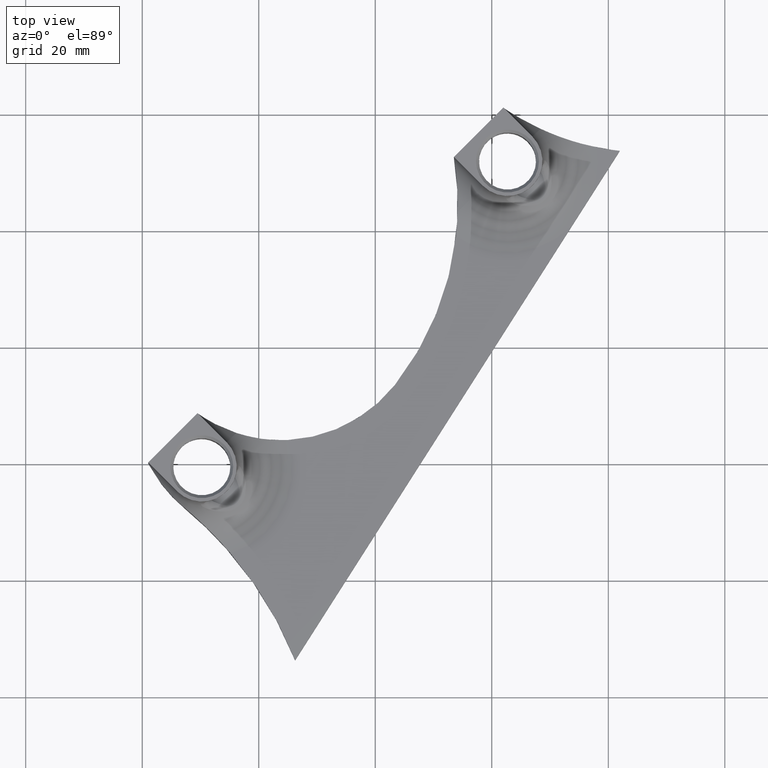
[diagram: clean part render]
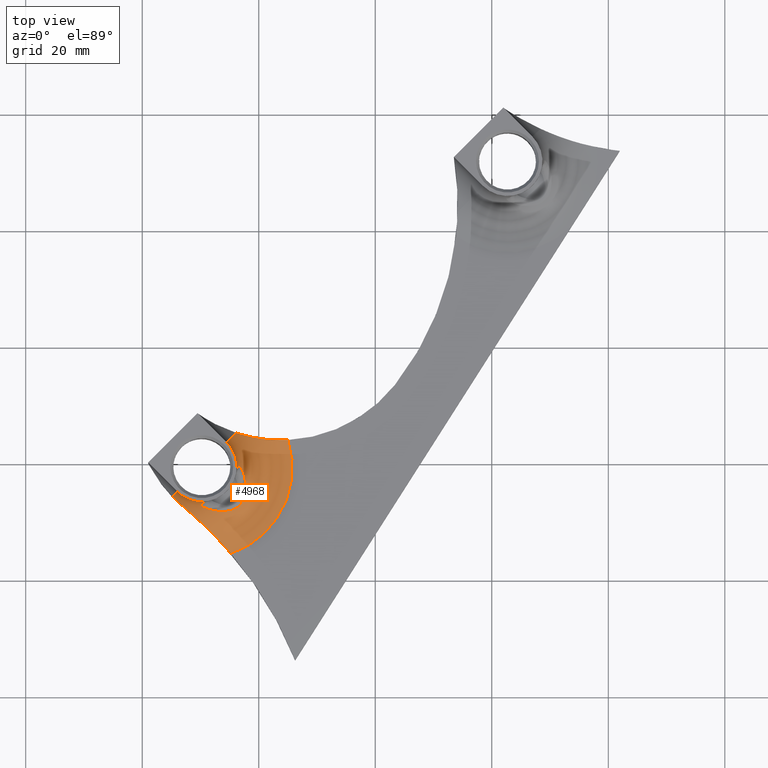
[diagram: same view with one face highlighted and labeled with its STEP entity id]
A machine part, top view. The second image highlights one B-rep face of the part: STEP entity #4968.
In plain terms, the highlighted toroidal blend (fillet) surface has major radius 15.525 mm and minor (blend) radius 9.525 mm.
Its self-contained STEP definition (entity closure, byte-faithful):
#1328 = B_SPLINE_CURVE_WITH_KNOTS ( 'NONE', 3,
 ( #4248, #4249, #4328, #4327, #4326, #4325, #4324, #4322, #4299, #4321, #4320, #4319, #4318, #4317 ),
 .UNSPECIFIED., .F., .F.,
 ( 4, 2, 2, 2, 2, 2, 4 ),
 ( 0.0007457499509097069700, 0.003149236284090509900, 0.004350979450680910600, 0.005552722617271311700, 0.007956208950452113900, 0.009157952117042518500, 0.01035969528363292300 ),
 .UNSPECIFIED. ) ;
#1354 = B_SPLINE_CURVE_WITH_KNOTS ( 'NONE', 3,
 ( #3044, #3045, #2300, #2299, #2298, #2294 ),
 .UNSPECIFIED., .F., .F.,
 ( 4, 2, 4 ),
 ( 0.007670879791883291800, 0.009102222353141386000, 0.01053356491439948000 ),
 .UNSPECIFIED. ) ;
#1357 = B_SPLINE_CURVE_WITH_KNOTS ( 'NONE', 3,
 ( #3061, #3060, #3059, #3058, #3057, #3056, #3055, #3075, #3074, #3073, #3072, #3071, #3070, #3069 ),
 .UNSPECIFIED., .F., .F.,
 ( 4, 2, 2, 2, 2, 2, 4 ),
 ( 2.813823409642952500E-007, 0.001504849655791668300, 0.003009417929242372200, 0.006018554476143777800, 0.009027691023045183000, 0.01053225929649588000, 0.01203682756994657600 ),
 .UNSPECIFIED. ) ;
#1362 = B_SPLINE_CURVE_WITH_KNOTS ( 'NONE', 3,
 ( #3761, #3762, #3756, #3755, #3754, #3753, #3752, #3751, #3750, #3749, #3748, #3745, #3747, #3743, #3746, #3744, #3742, #3741, #3740, #3739, #3205, #3206, #3207, #3208, #3209, #3210, #3211, #3212, #3213, #3214, #3215, #3216, #3217, #3218, #3219, #3220, #3221, #3223, #3222, #3299, #3298, #3297, #3296, #3295, #3294, #3293, #3292, #3291, #3290, #3289, #3288, #3287, #3688, #3689, #3687, #3690, #3691, #3692, #3693, #3694, #3695, #3681, #3682, #3683, #3684, #3685 ),
 .UNSPECIFIED., .F., .F.,
 ( 4, 2, 2, 2, 2, 2, 2, 2, 2, 2, 2, 2, 2, 2, 2, 2, 2, 2, 2, 2, 2, 2, 2, 2, 2, 2, 2, 2, 2, 2, 2, 2, 4 ),
 ( 0.008221871331113144200, 0.009907724641680458500, 0.01075065129696410600, 0.01117211462460592800, 0.01159357795224775000, 0.01201504127988957200, 0.01243650460753139300, 0.01285796793517321500, 0.01327943126281503500, 0.01370089459045685500, 0.01412235791809867600, 0.01496528457338232000, 0.01665113788394959400, 0.01833699119451687200, 0.02002284450508414600, 0.02086577116036777300, 0.02170869781565140000, 0.02255162447093502600, 0.02339455112621865300, 0.02423747778150228000, 0.02508040443678590700, 0.02592333109206953300, 0.02676625774735316000, 0.02760918440263679400, 0.02845211105792041400, 0.02929503771320404000, 0.03013796436848767400, 0.03055942769612948800, 0.03098089102377130100, 0.03182381767905493500, 0.03266674433433856800, 0.03350967098962220200, 0.03519552430018946200 ),
 .UNSPECIFIED. ) ;
#1772 = DIRECTION ( 'NONE',  ( -0.0000000000000000000, -0.0000000000000000000, -1.000000000000000000 ) ) ;
#1773 = CARTESIAN_POINT ( 'NONE',  ( -29.77331683725253000, 39.37998189283575800, 9.525000000000003900 ) ) ;
#1775 = DIRECTION ( 'NONE',  ( -1.000000000000000000, 0.0000000000000000000, 0.0000000000000000000 ) ) ;
#2097 = ORIENTED_EDGE ( 'NONE', *, *, #4416, .T. ) ;
#2099 = ORIENTED_EDGE ( 'NONE', *, *, #4419, .T. ) ;
#2162 = CARTESIAN_POINT ( 'NONE',  ( -23.84828616509041800, 45.30501256499788800, 3.227063293421044100 ) ) ;
#2168 = CARTESIAN_POINT ( 'NONE',  ( -26.81327856030426600, 34.16096154424534600, 9.525000000000005700 ) ) ;
#2171 = CARTESIAN_POINT ( 'NONE',  ( -14.99895754273689600, 44.14904180402984200, 2.358641852202397600E-015 ) ) ;
#2223 = CARTESIAN_POINT ( 'NONE',  ( -24.81357973590973700, 24.66853625056242900, 3.058294542859309800E-015 ) ) ;
#2224 = CARTESIAN_POINT ( 'NONE',  ( -32.77432536343481200, 32.48149548240635900, 4.358450293054441500 ) ) ;
#2229 = CARTESIAN_POINT ( 'NONE',  ( -24.55429648866207900, 36.41994361588756100, 9.525000000000005700 ) ) ;
#2246 = CARTESIAN_POINT ( 'NONE',  ( -25.53067615013327100, 43.62262257995502800, 9.525000000000005700 ) ) ;
#2248 = CARTESIAN_POINT ( 'NONE',  ( -34.80122124744543300, 34.35207748264275600, 5.061556280425719500 ) ) ;
#2250 = CARTESIAN_POINT ( 'NONE',  ( -34.01595752437175700, 35.13734120571646000, 9.525000000000005700 ) ) ;
#2281 = DIRECTION ( 'NONE',  ( 0.7071067811865406900, 0.7071067811865544600, 0.0000000000000000000 ) ) ;
#2294 = CARTESIAN_POINT ( 'NONE',  ( -32.77432536343481200, 32.48149548240635900, 4.358450293054441500 ) ) ;
#2298 = CARTESIAN_POINT ( 'NONE',  ( -33.11405913549414500, 32.76195985515804000, 4.546877030595137400 ) ) ;
#2299 = CARTESIAN_POINT ( 'NONE',  ( -33.45098942908828800, 33.05502989129631400, 4.715218961454381100 ) ) ;
#2300 = CARTESIAN_POINT ( 'NONE',  ( -34.12777203868789400, 33.67797077269539600, 4.966952515880626300 ) ) ;
#2360 = EDGE_LOOP ( 'NONE', ( #2953, #2097, #2958, #2954, #2949, #2946, #2947, #2944, #2099 ) ) ;
#2447 = FACE_OUTER_BOUND ( 'NONE', #2360, .T. ) ;
#2451 = TOROIDAL_SURFACE ( 'NONE', #4451, 15.52499999999997000, 9.524999999999998600 ) ;
#2485 = CIRCLE ( 'NONE', #4467, 5.999999999999967100 ) ;
#2554 = CIRCLE ( 'NONE', #4483, 9.524999999999996800 ) ;
#2555 = CIRCLE ( 'NONE', #4485, 9.525000000000000400 ) ;
#2557 = CIRCLE ( 'NONE', #4486, 5.999999999999967100 ) ;
#2562 = CIRCLE ( 'NONE', #4481, 15.52499999999996700 ) ;
#2944 = ORIENTED_EDGE ( 'NONE', *, *, #4548, .T. ) ;
#2946 = ORIENTED_EDGE ( 'NONE', *, *, #4430, .T. ) ;
#2947 = ORIENTED_EDGE ( 'NONE', *, *, #4412, .F. ) ;
#2949 = ORIENTED_EDGE ( 'NONE', *, *, #4455, .T. ) ;
#2953 = ORIENTED_EDGE ( 'NONE', *, *, #4418, .T. ) ;
#2954 = ORIENTED_EDGE ( 'NONE', *, *, #4420, .F. ) ;
#2958 = ORIENTED_EDGE ( 'NONE', *, *, #4549, .T. ) ;
#2967 = VERTEX_POINT ( 'NONE', #2229 ) ;
#2974 = VERTEX_POINT ( 'NONE', #2246 ) ;
#2975 = VERTEX_POINT ( 'NONE', #2223 ) ;
#2977 = VERTEX_POINT ( 'NONE', #2248 ) ;
#2993 = VERTEX_POINT ( 'NONE', #2250 ) ;
#3000 = VERTEX_POINT ( 'NONE', #2224 ) ;
#3014 = VERTEX_POINT ( 'NONE', #2171 ) ;
#3016 = VERTEX_POINT ( 'NONE', #2162 ) ;
#3026 = VERTEX_POINT ( 'NONE', #2168 ) ;
#3044 = CARTESIAN_POINT ( 'NONE',  ( -34.80122124744543300, 34.35207748264275600, 5.061556280425719500 ) ) ;
#3045 = CARTESIAN_POINT ( 'NONE',  ( -34.47108142796891200, 34.01180968086284700, 5.048055321748798900 ) ) ;
#3055 = CARTESIAN_POINT ( 'NONE',  ( -29.48663693147901200, 29.58400045254897000, 1.882652520432931600 ) ) ;
#3056 = CARTESIAN_POINT ( 'NONE',  ( -30.12518575517183100, 30.17912376046809100, 2.384340444485273800 ) ) ;
#3057 = CARTESIAN_POINT ( 'NONE',  ( -31.09258193595462700, 31.04625799561125300, 3.159684776418133700 ) ) ;
#3058 = CARTESIAN_POINT ( 'NONE',  ( -31.41681280677200400, 31.33113765598665500, 3.421532040151635800 ) ) ;
#3059 = CARTESIAN_POINT ( 'NONE',  ( -32.07961714665082600, 31.90172536366105000, 3.921642146573694400 ) ) ;
#3060 = CARTESIAN_POINT ( 'NONE',  ( -32.41785825114860100, 32.18721704064882500, 4.160742733392779300 ) ) ;
#3061 = CARTESIAN_POINT ( 'NONE',  ( -32.77432536343481200, 32.48149548240635900, 4.358450293054441500 ) ) ;
#3069 = CARTESIAN_POINT ( 'NONE',  ( -24.81357973590973700, 24.66853625056242900, 3.058294542859309800E-015 ) ) ;
#3070 = CARTESIAN_POINT ( 'NONE',  ( -25.14736547338314700, 25.05776878048500900, 5.592111517772890800E-015 ) ) ;
#3071 = CARTESIAN_POINT ( 'NONE',  ( -25.48448954507307800, 25.44157699058096600, 0.03549347292057243600 ) ) ;
#3072 = CARTESIAN_POINT ( 'NONE',  ( -26.16541417085010900, 26.19873059186970800, 0.1720055300137645600 ) ) ;
#3073 = CARTESIAN_POINT ( 'NONE',  ( -26.51119731682061700, 26.57407747864089500, 0.2741872792926884900 ) ) ;
#3074 = CARTESIAN_POINT ( 'NONE',  ( -27.52801265757823800, 27.65309594369405500, 0.6595413120244488800 ) ) ;
#3075 = CARTESIAN_POINT ( 'NONE',  ( -28.18749362798156400, 28.32049921787865900, 1.021840724585849600 ) ) ;
#3205 = CARTESIAN_POINT ( 'NONE',  ( -23.00176904847873900, 39.21552746246492700, 5.764199797012632400 ) ) ;
#3206 = CARTESIAN_POINT ( 'NONE',  ( -22.86780429882699700, 38.97931101985184900, 5.443929660523268800 ) ) ;
#3207 = CARTESIAN_POINT ( 'NONE',  ( -22.78236826606616500, 38.79629341150474200, 5.245657623197487000 ) ) ;
#3208 = CARTESIAN_POINT ( 'NONE',  ( -22.54804406380749500, 38.20831584070580100, 4.685475610381900900 ) ) ;
#3209 = CARTESIAN_POINT ( 'NONE',  ( -22.42162991419900900, 37.77019123807266300, 4.359619341550105900 ) ) ;
#3210 = CARTESIAN_POINT ( 'NONE',  ( -22.24402803248578700, 36.83385538137218200, 3.756250241892407100 ) ) ;
#3211 = CARTESIAN_POINT ( 'NONE',  ( -22.19406486422115800, 36.34472360568145200, 3.487169189728279100 ) ) ;
#3212 = CARTESIAN_POINT ( 'NONE',  ( -22.20667402211736200, 35.32946759638829800, 3.009159992979793000 ) ) ;
#3213 = CARTESIAN_POINT ( 'NONE',  ( -22.26881939639452000, 34.80102987812448800, 2.800147892303895600 ) ) ;
#3214 = CARTESIAN_POINT ( 'NONE',  ( -22.51463210653036400, 34.02338531119384900, 2.568728147589612200 ) ) ;
#3215 = CARTESIAN_POINT ( 'NONE',  ( -22.62100737030696300, 33.77124600359862700, 2.506706990768051500 ) ) ;
#3216 = CARTESIAN_POINT ( 'NONE',  ( -22.90060269073934400, 33.28720718669357100, 2.420341369866480200 ) ) ;
#3217 = CARTESIAN_POINT ( 'NONE',  ( -23.07095729661125100, 33.06214814905459300, 2.397597671673671500 ) ) ;
#3218 = CARTESIAN_POINT ( 'NONE',  ( -23.47343224988907200, 32.66270720215402400, 2.398865359263732300 ) ) ;
#3219 = CARTESIAN_POINT ( 'NONE',  ( -23.69895238878820000, 32.49451768856053500, 2.422706701138931200 ) ) ;
#3220 = CARTESIAN_POINT ( 'NONE',  ( -24.18644886935569700, 32.21733948086292500, 2.511607829973746800 ) ) ;
#3221 = CARTESIAN_POINT ( 'NONE',  ( -24.43903120912225200, 32.11281006937738900, 2.574667141791086200 ) ) ;
#3222 = CARTESIAN_POINT ( 'NONE',  ( -25.21878476340952300, 31.89749266286107200, 2.822010191825028400 ) ) ;
#3223 = CARTESIAN_POINT ( 'NONE',  ( -24.95611325817066700, 31.95235573595828900, 2.730008265938705000 ) ) ;
#3287 = CARTESIAN_POINT ( 'NONE',  ( -29.69403627879935900, 32.65721778110080500, 5.881004059688570400 ) ) ;
#3288 = CARTESIAN_POINT ( 'NONE',  ( -29.37802489768222700, 32.47705817022589500, 5.449948295862361300 ) ) ;
#3289 = CARTESIAN_POINT ( 'NONE',  ( -29.19582382428582100, 32.39182999733641600, 5.252207097495730000 ) ) ;
#3290 = CARTESIAN_POINT ( 'NONE',  ( -28.80652796196311300, 32.23604276445375700, 4.880045248162906200 ) ) ;
#3291 = CARTESIAN_POINT ( 'NONE',  ( -28.59714840226808300, 32.16472955322190300, 4.704224417076608800 ) ) ;
#3292 = CARTESIAN_POINT ( 'NONE',  ( -28.16238020679833200, 32.03957958645564500, 4.371183477271793000 ) ) ;
#3293 = CARTESIAN_POINT ( 'NONE',  ( -27.93754785832614800, 31.98579011574590700, 4.214386716146261600 ) ) ;
#3294 = CARTESIAN_POINT ( 'NONE',  ( -27.47544909490729000, 31.89744090169496000, 3.915858428067140900 ) ) ;
#3295 = CARTESIAN_POINT ( 'NONE',  ( -27.23814977335203100, 31.86285281889206200, 3.774187041607084800 ) ) ;
#3296 = CARTESIAN_POINT ( 'NONE',  ( -26.75145377283271800, 31.81630922233221500, 3.504497728394180300 ) ) ;
#3297 = CARTESIAN_POINT ( 'NONE',  ( -26.50084995632538200, 31.80430672178027900, 3.375924877013686000 ) ) ;
#3298 = CARTESIAN_POINT ( 'NONE',  ( -25.99200832925757300, 31.80940335557439600, 3.135496230196593600 ) ) ;
#3299 = CARTESIAN_POINT ( 'NONE',  ( -25.73553493447652200, 31.82630235145400400, 3.024370849328904800 ) ) ;
#3681 = CARTESIAN_POINT ( 'NONE',  ( -28.72177301533503500, 33.42806555794661000, 8.637612100910468300 ) ) ;
#3682 = CARTESIAN_POINT ( 'NONE',  ( -28.49097342174290400, 33.48501077054304200, 8.785539550715947500 ) ) ;
#3683 = CARTESIAN_POINT ( 'NONE',  ( -27.78346150894843100, 33.69563597720333100, 9.182809206480085300 ) ) ;
#3684 = CARTESIAN_POINT ( 'NONE',  ( -27.28598860947428100, 33.89285761937382100, 9.387519563407011000 ) ) ;
#3685 = CARTESIAN_POINT ( 'NONE',  ( -26.81327856030426600, 34.16096154424534600, 9.525000000000005700 ) ) ;
#3687 = CARTESIAN_POINT ( 'NONE',  ( -29.97062143084595900, 32.93221902802135800, 6.626069684446873600 ) ) ;
#3688 = CARTESIAN_POINT ( 'NONE',  ( -29.82568793386727500, 32.75018745392962700, 6.109008665628841200 ) ) ;
#3689 = CARTESIAN_POINT ( 'NONE',  ( -29.94527373285393400, 32.88738481248131500, 6.492103879934008500 ) ) ;
#3690 = CARTESIAN_POINT ( 'NONE',  ( -29.98203890612584400, 33.01408263050769400, 6.894644166421051600 ) ) ;
#3691 = CARTESIAN_POINT ( 'NONE',  ( -29.96775825350759300, 33.05228068203858500, 7.033510876216511500 ) ) ;
#3692 = CARTESIAN_POINT ( 'NONE',  ( -29.86663951723654300, 33.15167763091565000, 7.432401997341477400 ) ) ;
#3693 = CARTESIAN_POINT ( 'NONE',  ( -29.72089509957789800, 33.20011130173142500, 7.681532450213953900 ) ) ;
#3694 = CARTESIAN_POINT ( 'NONE',  ( -29.36975511793177800, 33.28772102279084800, 8.110843226506615300 ) ) ;
#3695 = CARTESIAN_POINT ( 'NONE',  ( -29.16277378280354800, 33.32881375237951700, 8.298798211234862200 ) ) ;
#3696 = DIRECTION ( 'NONE',  ( 0.7071067811865542300, -0.7071067811865409100, 0.0000000000000000000 ) ) ;
#3697 = CARTESIAN_POINT ( 'NONE',  ( -40.75114961517355300, 28.40214911491452900, 9.525000000000003900 ) ) ;
#3700 = DIRECTION ( 'NONE',  ( -0.7071067811865465700, -0.7071067811865484600, 0.0000000000000000000 ) ) ;
#3701 = CARTESIAN_POINT ( 'NONE',  ( -18.79548405933141500, 50.35781467075690200, 9.525000000000003900 ) ) ;
#3702 = DIRECTION ( 'NONE',  ( -0.7071067811865484600, 0.7071067811865466800, 0.0000000000000000000 ) ) ;
#3704 = DIRECTION ( 'NONE',  ( -1.000000000000000000, 0.0000000000000000000, 0.0000000000000000000 ) ) ;
#3705 = DIRECTION ( 'NONE',  ( -0.0000000000000000000, -0.0000000000000000000, -1.000000000000000000 ) ) ;
#3706 = CARTESIAN_POINT ( 'NONE',  ( -29.77331683725253000, 39.37998189283575800, 9.525000000000005700 ) ) ;
#3735 = CARTESIAN_POINT ( 'NONE',  ( -29.77331683725253000, 39.37998189283575800, 3.469446951953614200E-015 ) ) ;
#3736 = DIRECTION ( 'NONE',  ( -0.0000000000000000000, -0.0000000000000000000, -1.000000000000000000 ) ) ;
#3737 = DIRECTION ( 'NONE',  ( -1.000000000000000000, 0.0000000000000000000, 0.0000000000000000000 ) ) ;
#3739 = CARTESIAN_POINT ( 'NONE',  ( -23.04749160925223700, 39.28806741715752800, 5.875097013990876200 ) ) ;
#3740 = CARTESIAN_POINT ( 'NONE',  ( -23.14044736816498100, 39.41567420168326000, 6.109182728297336800 ) ) ;
#3741 = CARTESIAN_POINT ( 'NONE',  ( -23.18780152876606200, 39.47062494079263200, 6.232851376031050900 ) ) ;
#3742 = CARTESIAN_POINT ( 'NONE',  ( -23.27889184469612300, 39.55065728959108600, 6.486804577218507900 ) ) ;
#3743 = CARTESIAN_POINT ( 'NONE',  ( -23.44486315683528200, 39.57486432042090700, 7.030677155778867900 ) ) ;
#3744 = CARTESIAN_POINT ( 'NONE',  ( -23.32329204587544800, 39.57650799686256700, 6.618962476166517600 ) ) ;
#3745 = CARTESIAN_POINT ( 'NONE',  ( -23.54034176412282900, 39.45478477154708200, 7.427088444317160300 ) ) ;
#3746 = CARTESIAN_POINT ( 'NONE',  ( -23.40671925822484700, 39.58905342462180200, 6.892050486576050800 ) ) ;
#3747 = CARTESIAN_POINT ( 'NONE',  ( -23.51125705672974700, 39.50796264969412900, 7.296755100901346900 ) ) ;
#3748 = CARTESIAN_POINT ( 'NONE',  ( -23.59198399916860100, 39.32155688681554300, 7.671470928367643400 ) ) ;
#3749 = CARTESIAN_POINT ( 'NONE',  ( -23.61462690174846900, 39.24242768506898200, 7.785270786425818400 ) ) ;
#3750 = CARTESIAN_POINT ( 'NONE',  ( -23.65855289064506600, 39.06684579035869800, 8.000623113009659400 ) ) ;
#3751 = CARTESIAN_POINT ( 'NONE',  ( -23.67994723987628100, 38.96967941413546300, 8.102697229081893900 ) ) ;
#3752 = CARTESIAN_POINT ( 'NONE',  ( -23.72404959026318500, 38.76633224475026700, 8.293633693804894200 ) ) ;
#3753 = CARTESIAN_POINT ( 'NONE',  ( -23.74675837717240900, 38.66014996437390700, 8.382676269810435300 ) ) ;
#3754 = CARTESIAN_POINT ( 'NONE',  ( -23.82053416688652100, 38.33217264309171000, 8.634914358639711900 ) ) ;
#3755 = CARTESIAN_POINT ( 'NONE',  ( -23.87733161877112700, 38.10116799589851400, 8.783496608742153100 ) ) ;
#3756 = CARTESIAN_POINT ( 'NONE',  ( -24.09000021912652700, 37.38642378372503600, 9.185010114976448000 ) ) ;
#3761 = CARTESIAN_POINT ( 'NONE',  ( -24.55429648866207900, 36.41994361588756100, 9.525000000000005700 ) ) ;
#3762 = CARTESIAN_POINT ( 'NONE',  ( -24.28353291759962600, 36.89734304617091700, 9.386155729141277600 ) ) ;
#4248 = CARTESIAN_POINT ( 'NONE',  ( -14.99895754273689600, 44.14904180402984200, 2.358641852202397600E-015 ) ) ;
#4249 = CARTESIAN_POINT ( 'NONE',  ( -15.80299850424800700, 44.10916151115004900, 5.547501115884158600E-015 ) ) ;
#4282 = DIRECTION ( 'NONE',  ( -0.0000000000000000000, -0.0000000000000000000, -1.000000000000000000 ) ) ;
#4299 = CARTESIAN_POINT ( 'NONE',  ( -21.11214960288322800, 44.58795277800485500, 1.676171299847903300 ) ) ;
#4313 = DIRECTION ( 'NONE',  ( -1.000000000000000000, 0.0000000000000000000, 0.0000000000000000000 ) ) ;
#4314 = CARTESIAN_POINT ( 'NONE',  ( -29.77331683725253000, 39.37998189283575800, 9.525000000000005700 ) ) ;
#4317 = CARTESIAN_POINT ( 'NONE',  ( -23.84828616509041800, 45.30501256499788800, 3.227063293421044100 ) ) ;
#4318 = CARTESIAN_POINT ( 'NONE',  ( -23.50768263500275500, 45.19615404849311300, 3.041135465437700100 ) ) ;
#4319 = CARTESIAN_POINT ( 'NONE',  ( -23.16993185708667000, 45.09618337431477600, 2.844961367598897200 ) ) ;
#4320 = CARTESIAN_POINT ( 'NONE',  ( -22.49086564271996000, 44.91052865485416100, 2.451233513497521200 ) ) ;
#4321 = CARTESIAN_POINT ( 'NONE',  ( -22.14939368683345200, 44.82483987593447900, 2.253388599295413500 ) ) ;
#4322 = CARTESIAN_POINT ( 'NONE',  ( -20.40648707641451400, 44.45732786032427700, 1.315664539846533400 ) ) ;
#4324 = CARTESIAN_POINT ( 'NONE',  ( -19.30774939467271900, 44.30484501657291900, 0.8556381326124683500 ) ) ;
#4325 = CARTESIAN_POINT ( 'NONE',  ( -18.93489863595441800, 44.26135738118366400, 0.7154747261837142200 ) ) ;
#4326 = CARTESIAN_POINT ( 'NONE',  ( -18.17334169802526500, 44.19048077052281100, 0.4673058980962767600 ) ) ;
#4327 = CARTESIAN_POINT ( 'NONE',  ( -17.78234343547092800, 44.16300286086411100, 0.3587925846516577500 ) ) ;
#4328 = CARTESIAN_POINT ( 'NONE',  ( -16.59892714873104700, 44.10848710325161200, 0.09447340501910137000 ) ) ;
#4412 = EDGE_CURVE ( 'NONE', #3014, #2975, #2562, .T. ) ;
#4416 = EDGE_CURVE ( 'NONE', #2967, #3026, #1362, .T. ) ;
#4418 = EDGE_CURVE ( 'NONE', #2974, #2967, #2557, .T. ) ;
#4419 = EDGE_CURVE ( 'NONE', #3016, #2974, #2555, .T. ) ;
#4420 = EDGE_CURVE ( 'NONE', #2977, #2993, #2554, .T. ) ;
#4430 = EDGE_CURVE ( 'NONE', #3000, #2975, #1357, .T. ) ;
#4451 = AXIS2_PLACEMENT_3D ( 'NONE', #1773, #1772, #1775 ) ;
#4455 = EDGE_CURVE ( 'NONE', #2977, #3000, #1354, .T. ) ;
#4467 = AXIS2_PLACEMENT_3D ( 'NONE', #4314, #4282, #4313 ) ;
#4481 = AXIS2_PLACEMENT_3D ( 'NONE', #3735, #3736, #3737 ) ;
#4483 = AXIS2_PLACEMENT_3D ( 'NONE', #3697, #3696, #2281 ) ;
#4485 = AXIS2_PLACEMENT_3D ( 'NONE', #3701, #3702, #3700 ) ;
#4486 = AXIS2_PLACEMENT_3D ( 'NONE', #3706, #3705, #3704 ) ;
#4548 = EDGE_CURVE ( 'NONE', #3014, #3016, #1328, .T. ) ;
#4549 = EDGE_CURVE ( 'NONE', #3026, #2993, #2485, .T. ) ;
#4968 = ADVANCED_FACE ( 'NONE', ( #2447 ), #2451, .F. ) ;